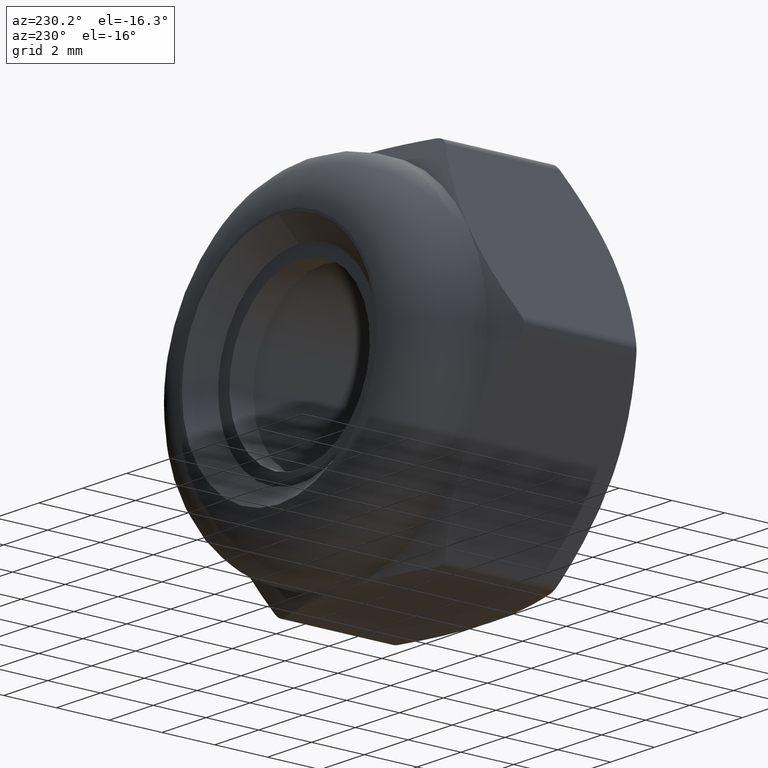
[diagram: clean part render]
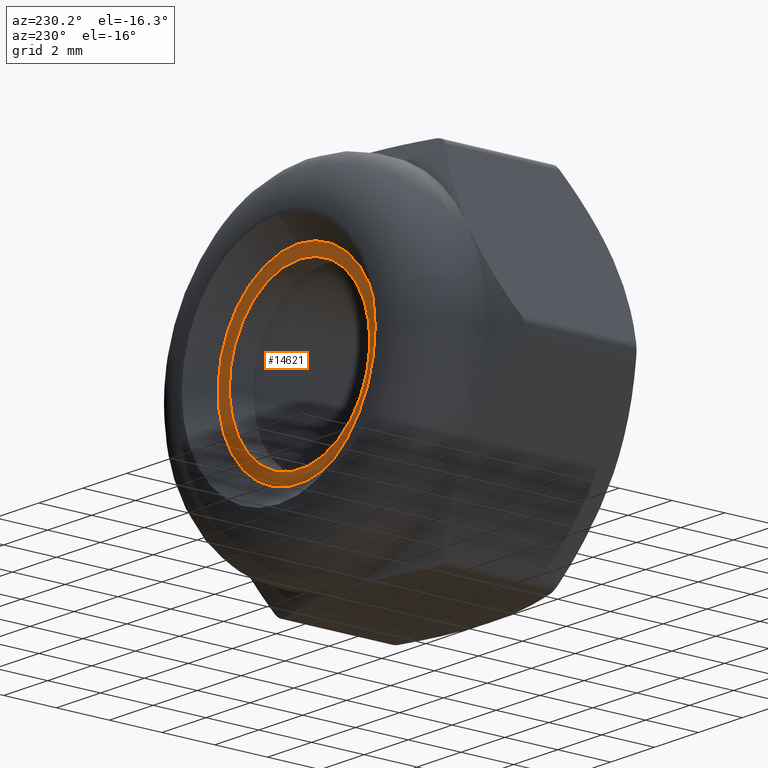
[diagram: same view with one face highlighted and labeled with its STEP entity id]
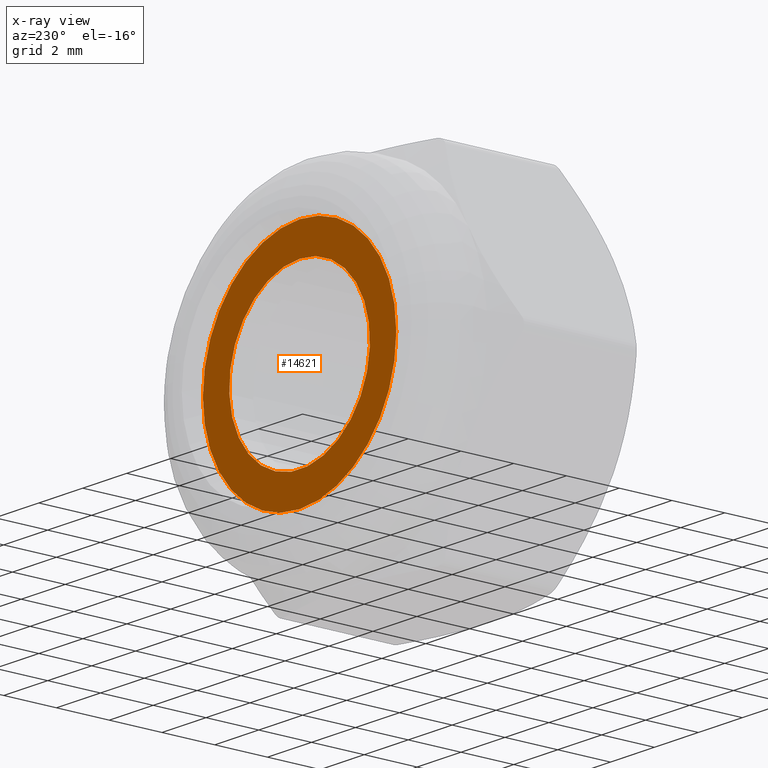
[diagram: x-ray of the same camera — body ghosted, the highlighted face saturated]
A machine part, auxiliary view. The second image highlights one B-rep face of the part: STEP entity #14621.
The next image is the same camera in x-ray: the body ghosted, the highlighted face saturated — about 0% of this face is hidden behind the body in this view.
In plain terms, the highlighted planar face has unit normal (0, 1, 0).
Its self-contained STEP definition (entity closure, byte-faithful):
#43 = EDGE_LOOP ( 'NONE', ( #15494 ) ) ;
#892 = FACE_OUTER_BOUND ( 'NONE', #43, .T. ) ;
#969 = EDGE_CURVE ( 'NONE', #2804, #2804, #11585, .T. ) ;
#986 = CARTESIAN_POINT ( 'NONE',  ( 0.000000000000000000, 4.450000000000001066, 3.199999999999999734 ) ) ;
#1105 = PLANE ( 'NONE',  #1909 ) ;
#1202 = CARTESIAN_POINT ( 'NONE',  ( 0.000000000000000000, 4.450000000000001066, 0.000000000000000000 ) ) ;
#1785 = EDGE_CURVE ( 'NONE', #3033, #3033, #12584, .T. ) ;
#1909 = AXIS2_PLACEMENT_3D ( 'NONE', #1202, #8876, #13964 ) ;
#2804 = VERTEX_POINT ( 'NONE', #986 ) ;
#3033 = VERTEX_POINT ( 'NONE', #4794 ) ;
#3567 = AXIS2_PLACEMENT_3D ( 'NONE', #11988, #13262, #9063 ) ;
#4612 = DIRECTION ( 'NONE',  ( 0.000000000000000000, 0.000000000000000000, 1.000000000000000000 ) ) ;
#4794 = CARTESIAN_POINT ( 'NONE',  ( 0.000000000000000000, 4.450000000000001066, 4.399999999999999467 ) ) ;
#6077 = ORIENTED_EDGE ( 'NONE', *, *, #969, .F. ) ;
#8359 = CARTESIAN_POINT ( 'NONE',  ( 0.000000000000000000, 4.450000000000001066, 0.000000000000000000 ) ) ;
#8876 = DIRECTION ( 'NONE',  ( 0.000000000000000000, 1.000000000000000000, 0.000000000000000000 ) ) ;
#8919 = EDGE_LOOP ( 'NONE', ( #6077 ) ) ;
#9063 = DIRECTION ( 'NONE',  ( 0.000000000000000000, 0.000000000000000000, 1.000000000000000000 ) ) ;
#9748 = DIRECTION ( 'NONE',  ( 0.000000000000000000, 1.000000000000000000, 0.000000000000000000 ) ) ;
#11585 = CIRCLE ( 'NONE', #3567, 3.199999999999999734 ) ;
#11988 = CARTESIAN_POINT ( 'NONE',  ( 0.000000000000000000, 4.450000000000001066, 0.000000000000000000 ) ) ;
#12142 = AXIS2_PLACEMENT_3D ( 'NONE', #8359, #9748, #4612 ) ;
#12584 = CIRCLE ( 'NONE', #12142, 4.399999999999999467 ) ;
#13262 = DIRECTION ( 'NONE',  ( 0.000000000000000000, 1.000000000000000000, 0.000000000000000000 ) ) ;
#13964 = DIRECTION ( 'NONE',  ( 0.000000000000000000, -0.000000000000000000, 1.000000000000000000 ) ) ;
#14621 = ADVANCED_FACE ( 'NONE', ( #16233, #892 ), #1105, .T. ) ;
#15494 = ORIENTED_EDGE ( 'NONE', *, *, #1785, .T. ) ;
#16233 = FACE_BOUND ( 'NONE', #8919, .T. ) ;